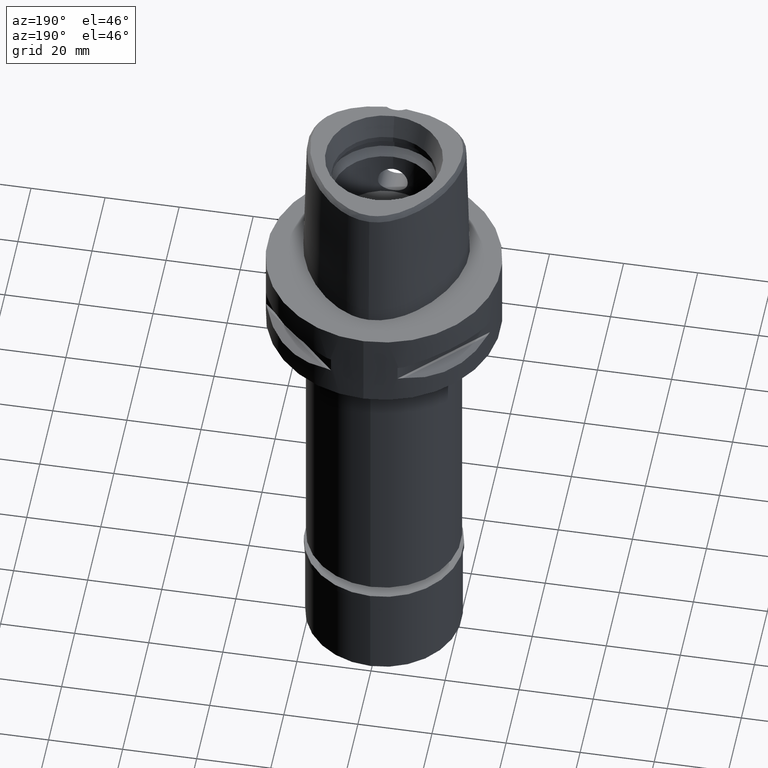
[diagram: clean part render]
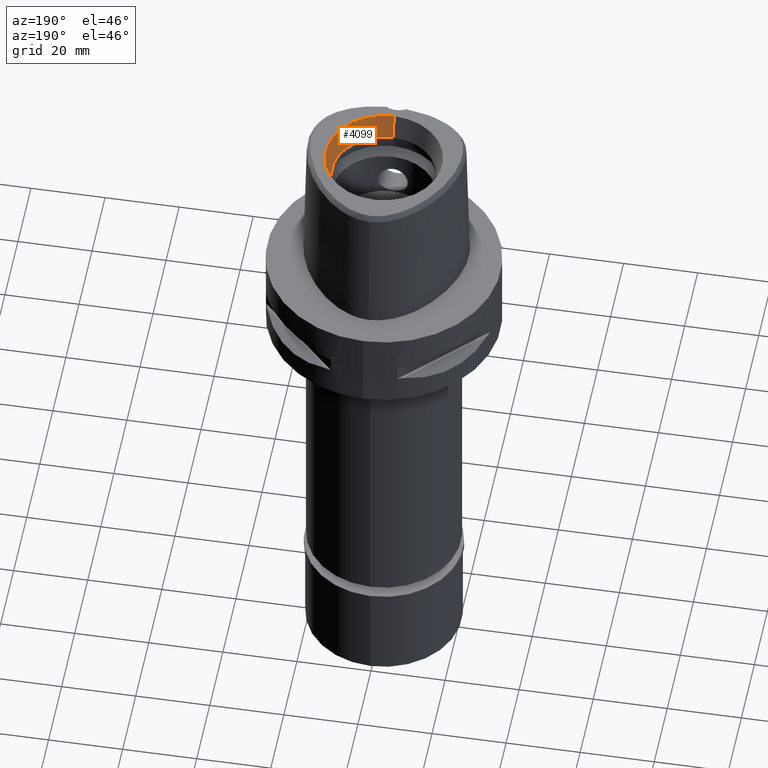
[diagram: same view with one face highlighted and labeled with its STEP entity id]
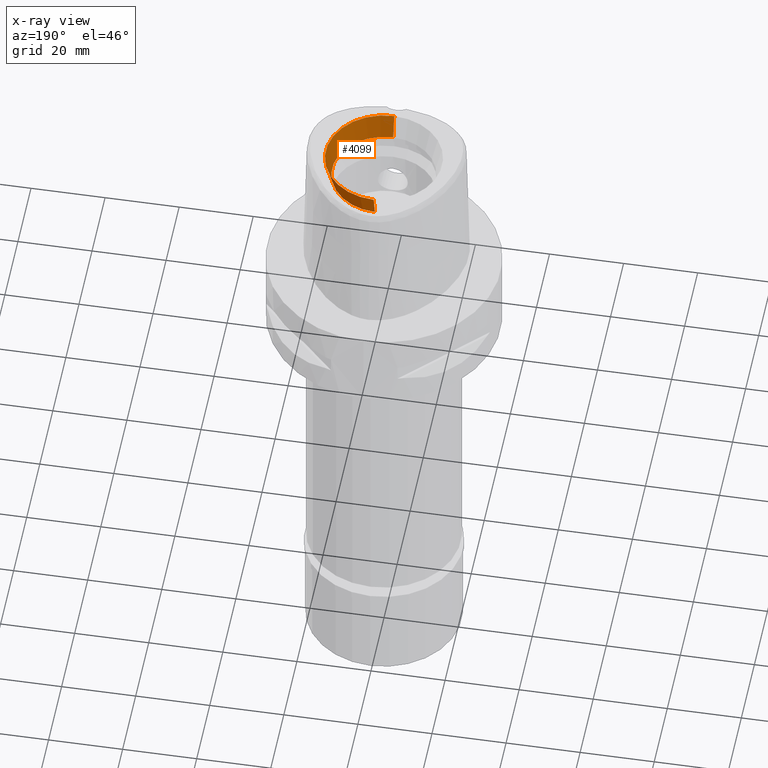
[diagram: x-ray of the same camera — body ghosted, the highlighted face saturated]
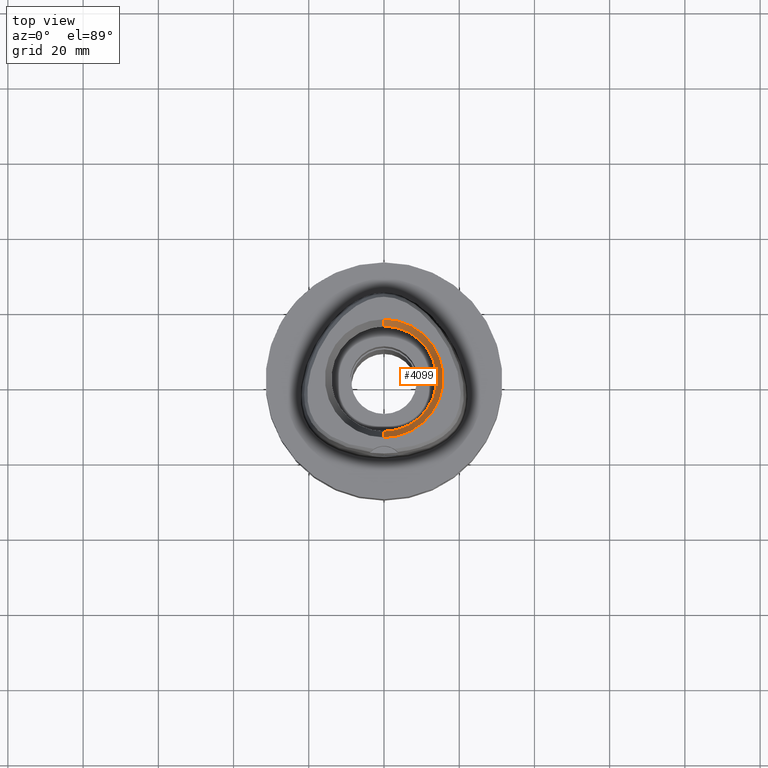
[diagram: same view with one face highlighted and labeled with its STEP entity id]
A machine part, auxiliary view. The second image highlights one B-rep face of the part: STEP entity #4099.
The next image is the same camera in x-ray: the body ghosted, the highlighted face saturated — about 0% of this face is hidden behind the body in this view.
A second angle (top view) of the same face is appended — the face is thin or edge-on in the first view.
In plain terms, the highlighted conical surface has half-angle 15 deg.
Its self-contained STEP definition (entity closure, byte-faithful):
#53 = CARTESIAN_POINT ( 'NONE',  ( 0.0000000000000000000, 14.00000000000000000, 31.60000000000000142 ) ) ;
#242 = EDGE_CURVE ( 'NONE', #1795, #2404, #1217, .T. ) ;
#357 = CARTESIAN_POINT ( 'NONE',  ( 0.0000000000000000000, 14.00000000000000000, 31.60000000000000142 ) ) ;
#481 = CIRCLE ( 'NONE', #1691, 14.00000000000000000 ) ;
#655 = EDGE_LOOP ( 'NONE', ( #3881, #990, #2226, #4895 ) ) ;
#951 = CARTESIAN_POINT ( 'NONE',  ( 0.0000000000000000000, 0.0000000000000000000, 31.60000000000000142 ) ) ;
#990 = ORIENTED_EDGE ( 'NONE', *, *, #3041, .F. ) ;
#1006 = DIRECTION ( 'NONE',  ( 0.0000000000000000000, 0.0000000000000000000, 1.000000000000000000 ) ) ;
#1064 = LINE ( 'NONE', #2602, #4155 ) ;
#1217 = LINE ( 'NONE', #357, #3460 ) ;
#1296 = VERTEX_POINT ( 'NONE', #4804 ) ;
#1344 = CARTESIAN_POINT ( 'NONE',  ( 0.0000000000000000000, 0.0000000000000000000, 34.79999999999999716 ) ) ;
#1691 = AXIS2_PLACEMENT_3D ( 'NONE', #951, #1006, #3702 ) ;
#1714 = EDGE_CURVE ( 'NONE', #1296, #2058, #1064, .T. ) ;
#1728 = DIRECTION ( 'NONE',  ( 0.0000000000000000000, 0.2588190451025869088, 0.9659258262890505486 ) ) ;
#1795 = VERTEX_POINT ( 'NONE', #53 ) ;
#2058 = VERTEX_POINT ( 'NONE', #4149 ) ;
#2226 = ORIENTED_EDGE ( 'NONE', *, *, #1714, .T. ) ;
#2261 = CARTESIAN_POINT ( 'NONE',  ( 0.0000000000000000000, 15.71487483155999776, 38.00000000000000000 ) ) ;
#2404 = VERTEX_POINT ( 'NONE', #2261 ) ;
#2602 = CARTESIAN_POINT ( 'NONE',  ( 0.0000000000000000000, -14.00000000000000000, 31.60000000000000142 ) ) ;
#2648 = DIRECTION ( 'NONE',  ( 0.0000000000000000000, -1.000000000000000000, 0.0000000000000000000 ) ) ;
#2908 = DIRECTION ( 'NONE',  ( 0.0000000000000000000, 0.0000000000000000000, 1.000000000000000000 ) ) ;
#3041 = EDGE_CURVE ( 'NONE', #1296, #1795, #481, .T. ) ;
#3058 = CIRCLE ( 'NONE', #4644, 15.71487483155999776 ) ;
#3302 = DIRECTION ( 'NONE',  ( 0.0000000000000000000, 0.0000000000000000000, 1.000000000000000000 ) ) ;
#3460 = VECTOR ( 'NONE', #1728, 1000.000000000000000 ) ;
#3596 = EDGE_CURVE ( 'NONE', #2058, #2404, #3058, .T. ) ;
#3702 = DIRECTION ( 'NONE',  ( 0.0000000000000000000, -1.000000000000000000, 0.0000000000000000000 ) ) ;
#3881 = ORIENTED_EDGE ( 'NONE', *, *, #242, .F. ) ;
#3971 = AXIS2_PLACEMENT_3D ( 'NONE', #1344, #2908, #4750 ) ;
#4026 = FACE_OUTER_BOUND ( 'NONE', #655, .T. ) ;
#4099 = ADVANCED_FACE ( 'NONE', ( #4026 ), #4444, .F. ) ;
#4119 = DIRECTION ( 'NONE',  ( 0.0000000000000000000, -0.2588190451025869088, 0.9659258262890505486 ) ) ;
#4149 = CARTESIAN_POINT ( 'NONE',  ( 0.0000000000000000000, -15.71487483155999776, 38.00000000000000000 ) ) ;
#4155 = VECTOR ( 'NONE', #4119, 1000.000000000000000 ) ;
#4444 = CONICAL_SURFACE ( 'NONE', #3971, 14.85743741577999977, 0.2617993877991000029 ) ;
#4490 = CARTESIAN_POINT ( 'NONE',  ( 0.0000000000000000000, 0.0000000000000000000, 38.00000000000000000 ) ) ;
#4644 = AXIS2_PLACEMENT_3D ( 'NONE', #4490, #3302, #2648 ) ;
#4750 = DIRECTION ( 'NONE',  ( 0.0000000000000000000, 1.000000000000000000, 0.0000000000000000000 ) ) ;
#4804 = CARTESIAN_POINT ( 'NONE',  ( 0.0000000000000000000, -14.00000000000000000, 31.60000000000000142 ) ) ;
#4895 = ORIENTED_EDGE ( 'NONE', *, *, #3596, .T. ) ;